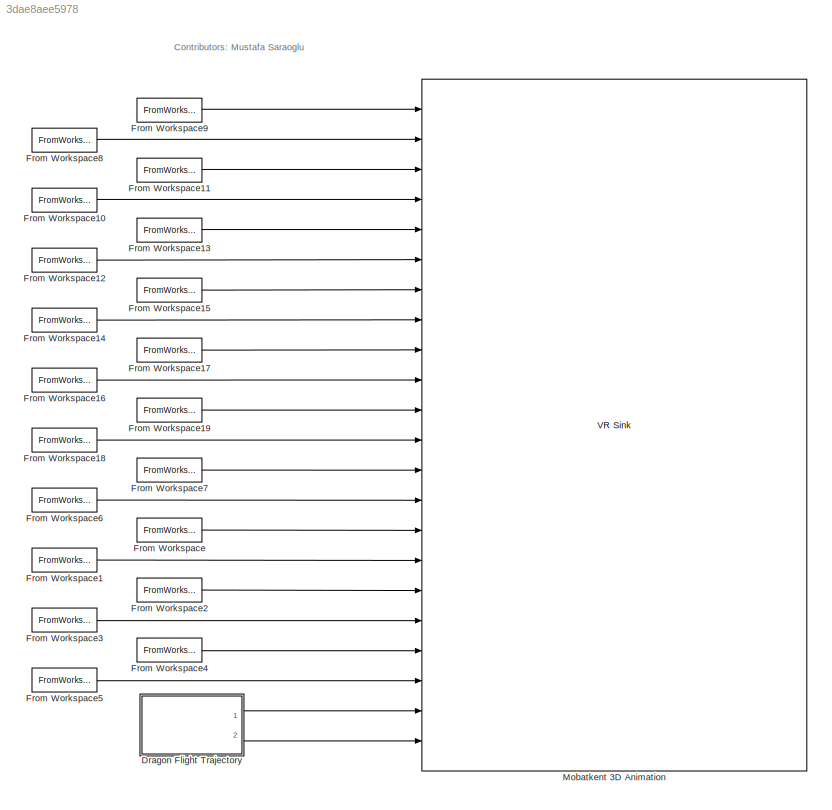
MODEL slx_3dae8aee5978
KIND model
CONFIG AbsTol = auto
CONFIG EnableMultiTasking = off
CONFIG FixedStep = auto
CONFIG MaxStep = auto
CONFIG MinStep = auto
CONFIG RelTol = 1e-3
CONFIG SampleTimeConstraint = Unconstrained
CONFIG SolverName = VariableStepAuto
CONFIG StartTime = 0.0
CONFIG StopTime = Sim_t
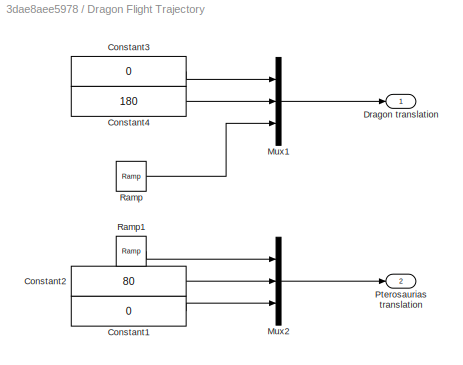
BLOCK [SubSystem] Dragon Flight Trajectory
  Ports = [0, 2]
  RequestExecContextInheritance = off
BLOCK [Constant] Dragon Flight Trajectory/Constant1
  Value = 0
BLOCK [Constant] Dragon Flight Trajectory/Constant2
  Value = 80
BLOCK [Constant] Dragon Flight Trajectory/Constant3
  Value = 0
BLOCK [Constant] Dragon Flight Trajectory/Constant4
  Value = 180
BLOCK [Outport] Dragon Flight Trajectory/Dragon translation
BLOCK [Mux] Dragon Flight Trajectory/Mux1
  DisplayOption = bar
  Inputs = 3
  Ports = [3, 1]
BLOCK [Mux] Dragon Flight Trajectory/Mux2
  DisplayOption = bar
  Inputs = 3
  Ports = [3, 1]
BLOCK [Outport] Dragon Flight Trajectory/Pterosaurias translation
  Port = 2
BLOCK [Reference] Dragon Flight Trajectory/Ramp  REF=simulink/Sources/Ramp
  Ports = [0, 1]
  SourceBlock = simulink/Sources/Ramp
  SourceProductBaseCode = SL
  SourceType = Ramp
BLOCK [Reference] Dragon Flight Trajectory/Ramp1  REF=simulink/Sources/Ramp
  Ports = [0, 1]
  SourceBlock = simulink/Sources/Ramp
  SourceProductBaseCode = SL
  SourceType = Ramp
BLOCK [FromWorkspace] From Workspace
  VariableName = V8_rotation
BLOCK [FromWorkspace] From Workspace1
  NameLocation = top
  VariableName = V8_translation
BLOCK [FromWorkspace] From Workspace10
  VariableName = V2_translation
BLOCK [FromWorkspace] From Workspace11
  VariableName = V2_rotation
BLOCK [FromWorkspace] From Workspace12
  VariableName = V3_translation
BLOCK [FromWorkspace] From Workspace13
  VariableName = V3_rotation
BLOCK [FromWorkspace] From Workspace14
  VariableName = V4_translation
BLOCK [FromWorkspace] From Workspace15
  VariableName = V4_rotation
BLOCK [FromWorkspace] From Workspace16
  VariableName = V5_translation
BLOCK [FromWorkspace] From Workspace17
  VariableName = V5_rotation
BLOCK [FromWorkspace] From Workspace18
  VariableName = V6_translation
BLOCK [FromWorkspace] From Workspace19
  VariableName = V6_rotation
BLOCK [FromWorkspace] From Workspace2
  VariableName = V9_rotation
BLOCK [FromWorkspace] From Workspace3
  VariableName = V9_translation
BLOCK [FromWorkspace] From Workspace4
  VariableName = V10_rotation
BLOCK [FromWorkspace] From Workspace5
  VariableName = V10_translation
BLOCK [FromWorkspace] From Workspace6
  VariableName = V7_translation
BLOCK [FromWorkspace] From Workspace7
  VariableName = V7_rotation
BLOCK [FromWorkspace] From Workspace8
  VariableName = V1_translation
BLOCK [FromWorkspace] From Workspace9
  VariableName = V1_rotation
BLOCK [Reference] Mobatkent 3D Animation  REF=vrlib/VR Sink
  InstantiateOnLoad = on
  Ports = [22]
  SourceBlock = vrlib/VR Sink
  SourceProductBaseCode = SL
  SourceType = Virtual Reality Sink
ANNOTATION (root): Contributors: Mustafa Saraoglu
LINE Dragon Flight Trajectory/Constant1:1 -> Dragon Flight Trajectory/Mux2:3
LINE Dragon Flight Trajectory/Constant2:1 -> Dragon Flight Trajectory/Mux2:2
LINE Dragon Flight Trajectory/Constant3:1 -> Dragon Flight Trajectory/Mux1:1
LINE Dragon Flight Trajectory/Constant4:1 -> Dragon Flight Trajectory/Mux1:2
LINE Dragon Flight Trajectory/Mux1:1 -> Dragon Flight Trajectory/Dragon translation:1
LINE Dragon Flight Trajectory/Mux2:1 -> Dragon Flight Trajectory/Pterosaurias translation:1
LINE Dragon Flight Trajectory/Ramp1:1 -> Dragon Flight Trajectory/Mux2:1
LINE Dragon Flight Trajectory/Ramp:1 -> Dragon Flight Trajectory/Mux1:3
LINE Dragon Flight Trajectory:1 -> Mobatkent 3D Animation:21
LINE Dragon Flight Trajectory:2 -> Mobatkent 3D Animation:22
LINE From Workspace10:1 -> Mobatkent 3D Animation:4
LINE From Workspace11:1 -> Mobatkent 3D Animation:3
LINE From Workspace12:1 -> Mobatkent 3D Animation:6
LINE From Workspace13:1 -> Mobatkent 3D Animation:5
LINE From Workspace14:1 -> Mobatkent 3D Animation:8
LINE From Workspace15:1 -> Mobatkent 3D Animation:7
LINE From Workspace16:1 -> Mobatkent 3D Animation:10
LINE From Workspace17:1 -> Mobatkent 3D Animation:9
LINE From Workspace18:1 -> Mobatkent 3D Animation:12
LINE From Workspace19:1 -> Mobatkent 3D Animation:11
LINE From Workspace1:1 -> Mobatkent 3D Animation:16
LINE From Workspace2:1 -> Mobatkent 3D Animation:17
LINE From Workspace3:1 -> Mobatkent 3D Animation:18
LINE From Workspace4:1 -> Mobatkent 3D Animation:19
LINE From Workspace5:1 -> Mobatkent 3D Animation:20
LINE From Workspace6:1 -> Mobatkent 3D Animation:14
LINE From Workspace7:1 -> Mobatkent 3D Animation:13
LINE From Workspace8:1 -> Mobatkent 3D Animation:2
LINE From Workspace9:1 -> Mobatkent 3D Animation:1
LINE From Workspace:1 -> Mobatkent 3D Animation:15
